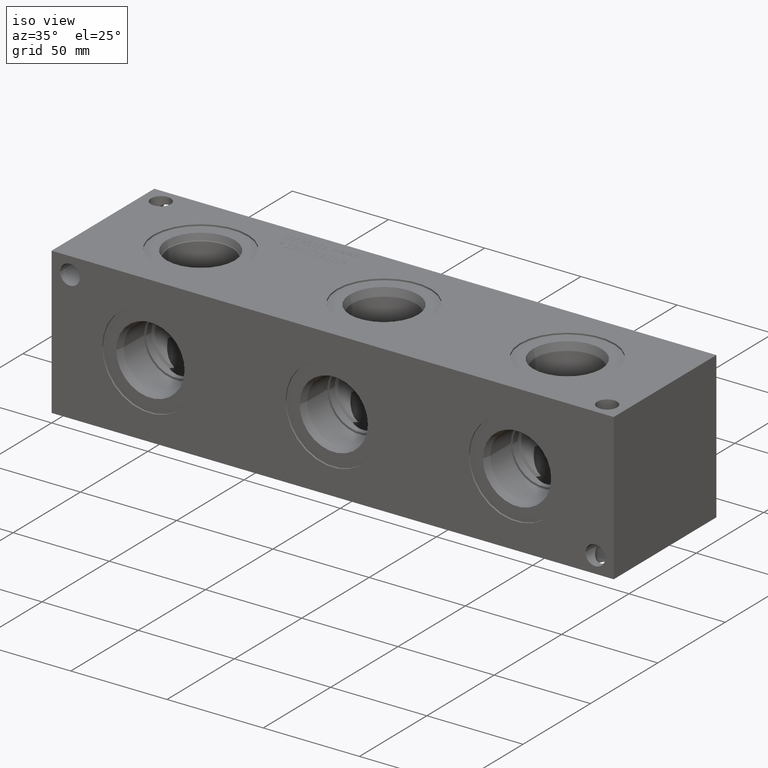
[diagram: clean part render]
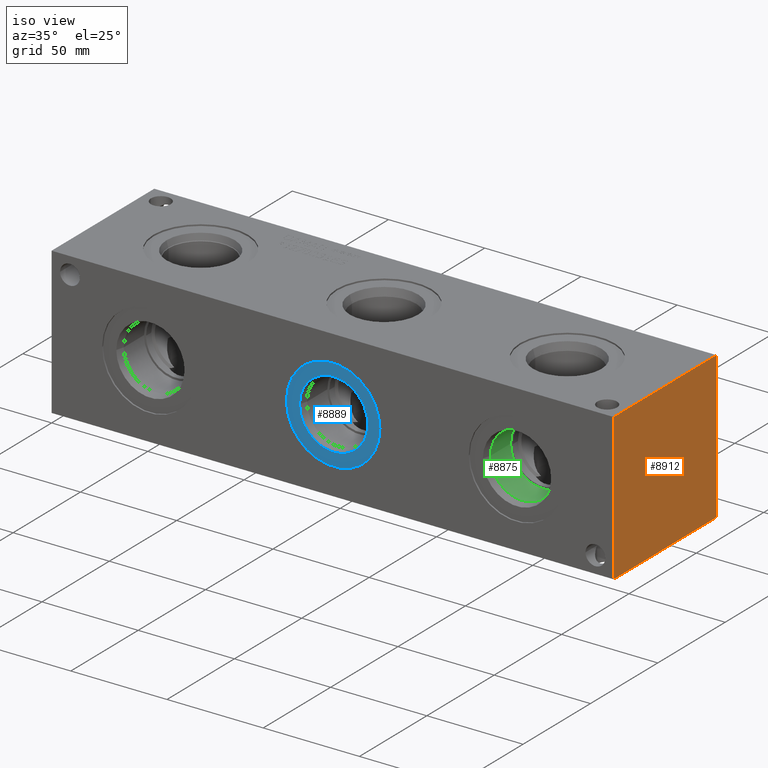
[diagram: same view with three faces highlighted in distinct colors, each labeled with its STEP entity id]
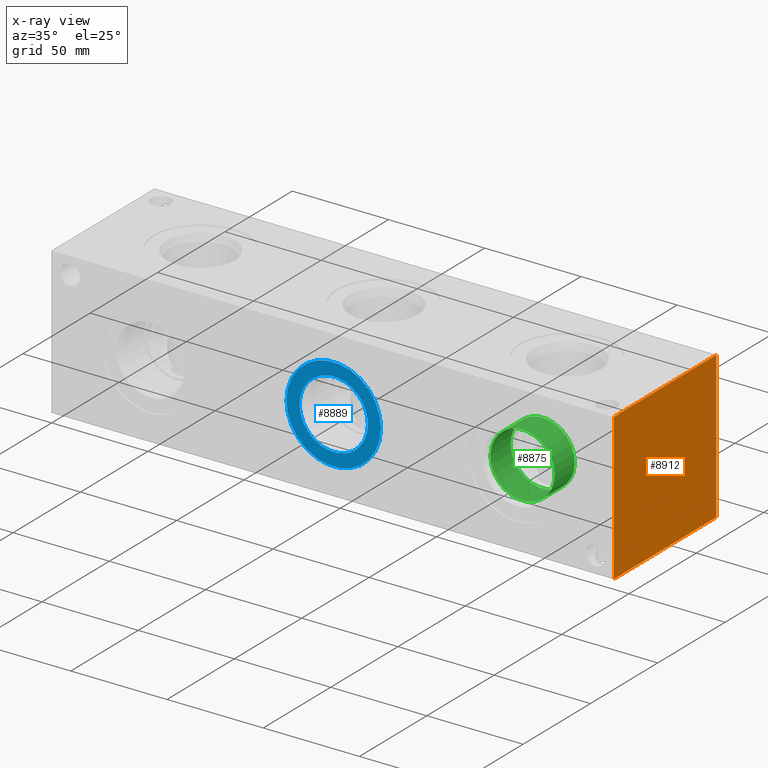
[diagram: x-ray of the same camera — body ghosted, the three highlighted faces saturated]
A machine part, iso view with three faces highlighted in distinct colors.
The next image is the same camera in x-ray (body ghosted, the three faces saturated) — at least one of them is partly hidden behind the body in this view.
Their STEP definitions:

[orange] entity #8912 — the highlighted planar face has unit normal (1, 0, 0).
#1280=FACE_OUTER_BOUND('',#1800,.T.);
#1800=EDGE_LOOP('',(#7871,#7872,#7873,#7874));
#2096=LINE('',#13757,#2847);
#2561=LINE('',#15697,#3312);
#2562=LINE('',#15700,#3313);
#2563=LINE('',#15701,#3314);
#2847=VECTOR('',#9987,10.);
#3312=VECTOR('',#11552,10.);
#3313=VECTOR('',#11555,10.);
#3314=VECTOR('',#11556,10.);
#3631=VERTEX_POINT('',#13754);
#3632=VERTEX_POINT('',#13756);
#4137=VERTEX_POINT('',#15695);
#4138=VERTEX_POINT('',#15699);
#4611=EDGE_CURVE('',#3631,#3632,#2096,.T.);
#5390=EDGE_CURVE('',#4137,#3632,#2561,.T.);
#5391=EDGE_CURVE('',#4138,#4137,#2562,.T.);
#5392=EDGE_CURVE('',#4138,#3631,#2563,.T.);
#7871=ORIENTED_EDGE('',*,*,#5391,.T.);
#7872=ORIENTED_EDGE('',*,*,#5390,.T.);
#7873=ORIENTED_EDGE('',*,*,#4611,.F.);
#7874=ORIENTED_EDGE('',*,*,#5392,.F.);
#8134=PLANE('',#9553);
#8912=ADVANCED_FACE('',(#1280),#8134,.T.);
#9553=AXIS2_PLACEMENT_3D('',#15698,#11553,#11554);
#9987=DIRECTION('',(0.,1.,0.));
#11552=DIRECTION('',(0.,0.,1.));
#11553=DIRECTION('center_axis',(1.,0.,0.));
#11554=DIRECTION('ref_axis',(0.,1.,0.));
#11555=DIRECTION('',(0.,1.,0.));
#11556=DIRECTION('',(0.,0.,1.));
#13754=CARTESIAN_POINT('',(292.1,0.,76.2));
#13756=CARTESIAN_POINT('',(292.1,76.2,76.2));
#13757=CARTESIAN_POINT('',(292.1,0.,76.2));
#15695=CARTESIAN_POINT('',(292.1,76.2,0.));
#15697=CARTESIAN_POINT('',(292.1,76.2,0.));
#15698=CARTESIAN_POINT('Origin',(292.1,0.,0.));
#15699=CARTESIAN_POINT('',(292.1,0.,0.));
#15700=CARTESIAN_POINT('',(292.1,0.,0.));
#15701=CARTESIAN_POINT('',(292.1,0.,0.));

[blue] entity #8889 — the highlighted planar face has unit normal (0, -1, 0).
#377=CIRCLE('',#9501,24.5618);
#378=CIRCLE('',#9502,24.5618);
#379=CIRCLE('',#9503,17.7546);
#450=FACE_BOUND('',#1771,.T.);
#1257=FACE_OUTER_BOUND('',#1770,.T.);
#1770=EDGE_LOOP('',(#7753,#7754));
#1771=EDGE_LOOP('',(#7755));
#4107=VERTEX_POINT('',#15597);
#4108=VERTEX_POINT('',#15598);
#4109=VERTEX_POINT('',#15601);
#5343=EDGE_CURVE('',#4107,#4108,#377,.T.);
#5344=EDGE_CURVE('',#4108,#4107,#378,.T.);
#5345=EDGE_CURVE('',#4109,#4109,#379,.T.);
#7753=ORIENTED_EDGE('',*,*,#5343,.T.);
#7754=ORIENTED_EDGE('',*,*,#5344,.T.);
#7755=ORIENTED_EDGE('',*,*,#5345,.F.);
#8127=PLANE('',#9500);
#8889=ADVANCED_FACE('',(#1257,#450),#8127,.T.);
#9500=AXIS2_PLACEMENT_3D('',#15596,#11429,#11430);
#9501=AXIS2_PLACEMENT_3D('',#15599,#11431,#11432);
#9502=AXIS2_PLACEMENT_3D('',#15600,#11433,#11434);
#9503=AXIS2_PLACEMENT_3D('',#15602,#11435,#11436);
#11429=DIRECTION('center_axis',(0.,-1.,0.));
#11430=DIRECTION('ref_axis',(1.,0.,0.));
#11431=DIRECTION('center_axis',(0.,-1.,0.));
#11432=DIRECTION('ref_axis',(1.,0.,0.));
#11433=DIRECTION('center_axis',(0.,-1.,0.));
#11434=DIRECTION('ref_axis',(1.,0.,0.));
#11435=DIRECTION('center_axis',(0.,-1.,0.));
#11436=DIRECTION('ref_axis',(1.,0.,0.));
#15596=CARTESIAN_POINT('Origin',(146.05,0.7874,38.1));
#15597=CARTESIAN_POINT('',(170.6118,0.7874,38.1));
#15598=CARTESIAN_POINT('',(121.4882,0.7874,38.1));
#15599=CARTESIAN_POINT('Origin',(146.05,0.7874,38.1));
#15600=CARTESIAN_POINT('Origin',(146.05,0.7874,38.1));
#15601=CARTESIAN_POINT('',(128.2954,0.7874,38.1));
#15602=CARTESIAN_POINT('Origin',(146.05,0.7874,38.1));

[green] entity #8875 — the highlighted cylindrical surface (bore or boss wall) has radius 16.6751 mm, axis along (0, -1, 0).
#108=CYLINDRICAL_SURFACE('',#9464,16.6751);
#353=CIRCLE('',#9462,16.6751);
#354=CIRCLE('',#9463,16.6751);
#355=CIRCLE('',#9465,16.6751);
#1243=FACE_OUTER_BOUND('',#1756,.T.);
#1756=EDGE_LOOP('',(#7683,#7684,#7685,#7686,#7687));
#2530=LINE('',#15528,#3281);
#3281=VECTOR('',#11347,16.6751);
#4084=VERTEX_POINT('',#15521);
#4085=VERTEX_POINT('',#15522);
#4086=VERTEX_POINT('',#15526);
#5305=EDGE_CURVE('',#4084,#4085,#353,.T.);
#5306=EDGE_CURVE('',#4085,#4084,#354,.T.);
#5307=EDGE_CURVE('',#4086,#4086,#355,.T.);
#5308=EDGE_CURVE('',#4086,#4085,#2530,.T.);
#7683=ORIENTED_EDGE('',*,*,#5307,.F.);
#7684=ORIENTED_EDGE('',*,*,#5308,.T.);
#7685=ORIENTED_EDGE('',*,*,#5305,.F.);
#7686=ORIENTED_EDGE('',*,*,#5306,.F.);
#7687=ORIENTED_EDGE('',*,*,#5308,.F.);
#8875=ADVANCED_FACE('',(#1243),#108,.F.);
#9462=AXIS2_PLACEMENT_3D('',#15523,#11339,#11340);
#9463=AXIS2_PLACEMENT_3D('',#15524,#11341,#11342);
#9464=AXIS2_PLACEMENT_3D('',#15525,#11343,#11344);
#9465=AXIS2_PLACEMENT_3D('',#15527,#11345,#11346);
#11339=DIRECTION('center_axis',(0.,-1.,0.));
#11340=DIRECTION('ref_axis',(1.,0.,0.));
#11341=DIRECTION('center_axis',(0.,-1.,0.));
#11342=DIRECTION('ref_axis',(1.,0.,0.));
#11343=DIRECTION('center_axis',(0.,-1.,0.));
#11344=DIRECTION('ref_axis',(1.,0.,0.));
#11345=DIRECTION('center_axis',(0.,1.,0.));
#11346=DIRECTION('ref_axis',(1.,0.,0.));
#11347=DIRECTION('',(0.,1.,0.));
#15521=CARTESIAN_POINT('',(257.9751,19.8374,38.1));
#15522=CARTESIAN_POINT('',(224.6249,19.8374,38.1));
#15523=CARTESIAN_POINT('Origin',(241.3,19.8374,38.1));
#15524=CARTESIAN_POINT('Origin',(241.3,19.8374,38.1));
#15525=CARTESIAN_POINT('Origin',(241.3,9.9187,38.1));
#15526=CARTESIAN_POINT('',(224.6249,4.8236788467706,38.1));
#15527=CARTESIAN_POINT('Origin',(241.3,4.8236788467706,38.1));
#15528=CARTESIAN_POINT('',(224.6249,9.9187,38.1));